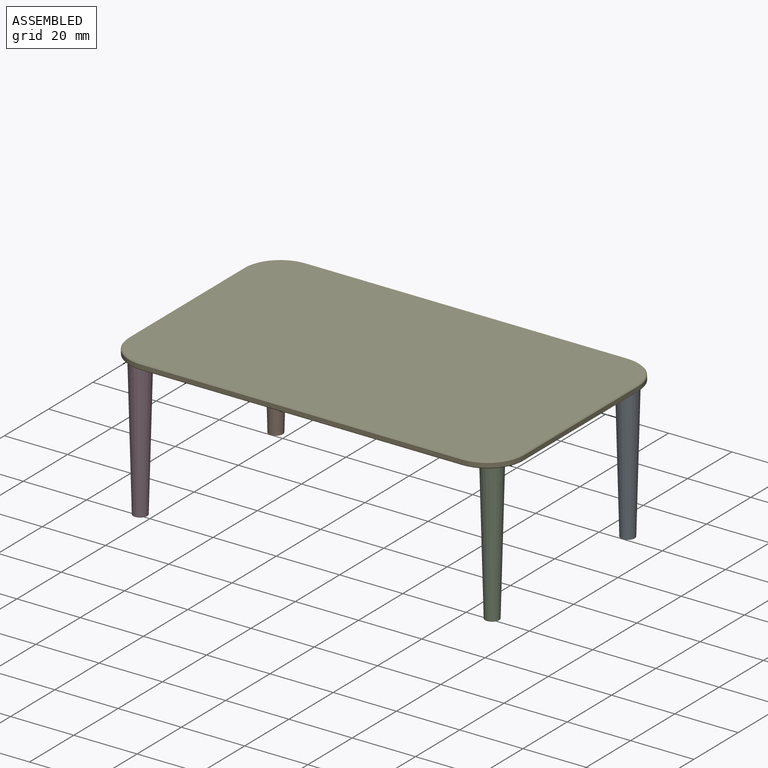
[diagram: assembled view]
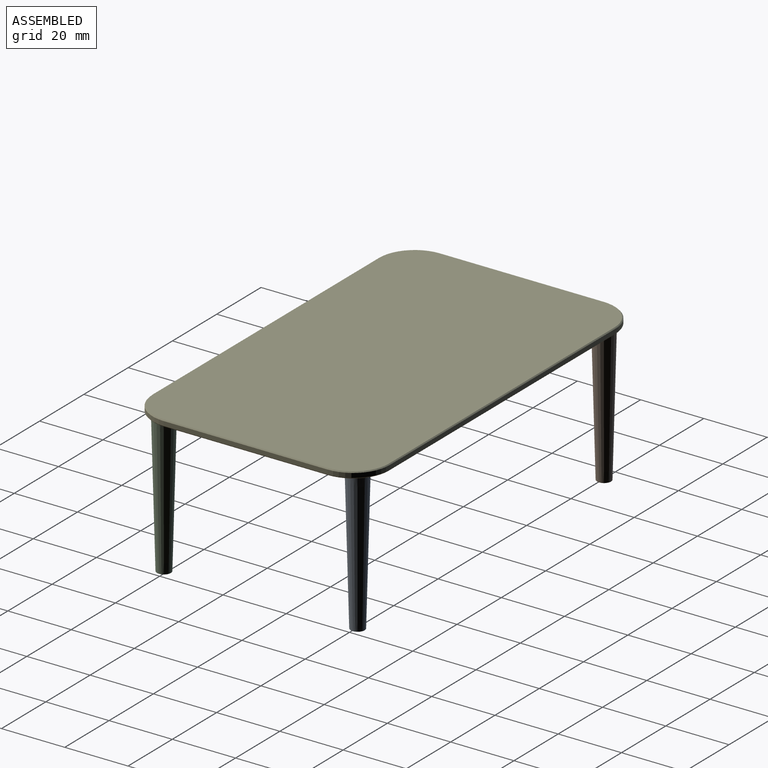
[diagram: assembled view, second angle]
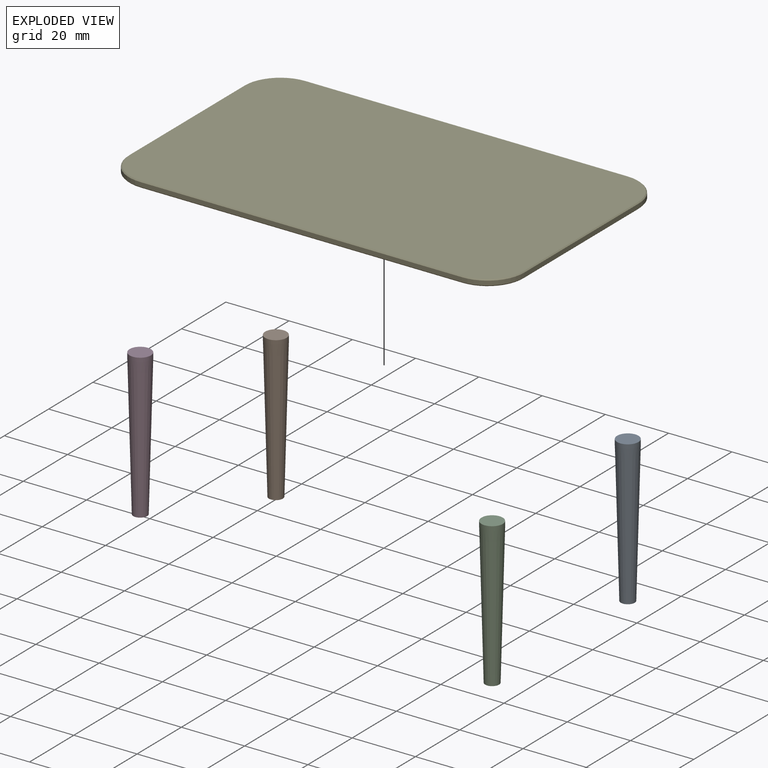
[diagram: exploded view]
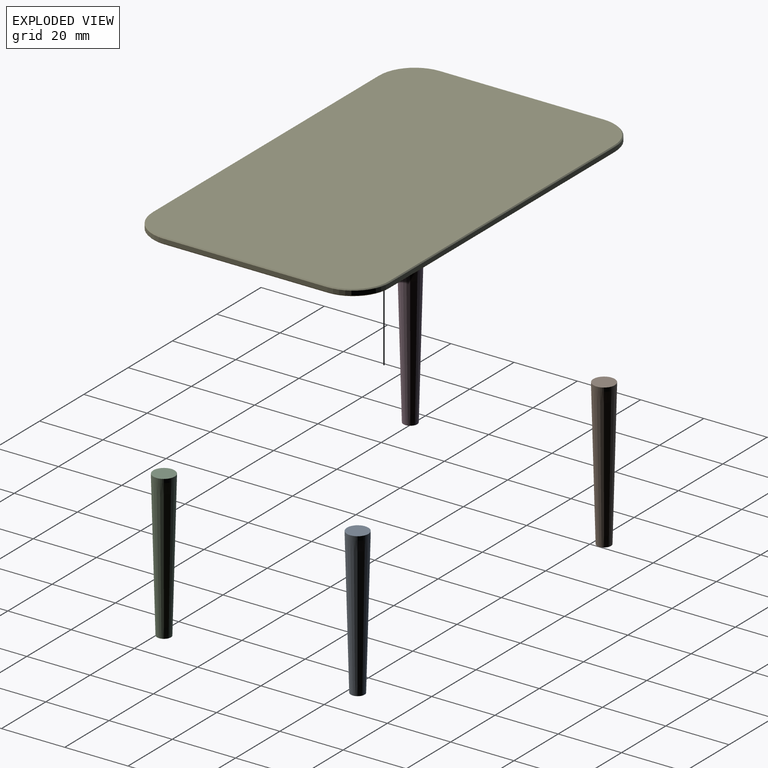
[diagram: exploded view, second angle]
ASSEMBLY  parts=5 mates=4
PART A: 4 faces, bbox 6.8x6.8x46.3 mm
  f0: cone r=3.38mm half-angle=1.5deg, axis (0,0,1), area 787.9mm2, adj f1,f2
  f1: plane 4.39x4.39mm, normal (0,0,-1), area 15.2mm2, adj f0
  f2: cylinder r=3.38mm len=6.75mm, axis (0,0,-1), area 26.5mm2, adj f0,f3
  f3: plane 6.75x6.75mm, normal (0,0,1), area 35.8mm2, adj f2
PART B: same geometry as A
PART C: same geometry as A
PART D: same geometry as A
PART E: 34 faces, bbox 125x75x2 mm
  f0: plane 124.4x74.4mm, normal (0,0,-1), area 9002.9mm2, adj f6,f8,f10,f12,f26,f27,f28,f29
  f1: plane 101.82x1.4mm, normal (0,1,0), area 142.6mm2, adj f14,f17,f24,f32
  f2: plane 51.82x1.4mm, normal (-1,0,0), area 72.6mm2, adj f14,f15,f20,f31
  f3: plane 101.82x1.4mm, normal (0,-1,0), area 142.6mm2, adj f15,f16,f19,f27
  f4: plane 51.82x1.4mm, normal (1,0,0), area 72.6mm2, adj f16,f17,f23,f28
  f5: plane 124.4x74.4mm, normal (0,0,1), area 9146mm2, adj f18,f19,f20,f21,f22,f23,f24,f25
  f6: cylinder r=3.37mm len=6.75mm, axis (0,0,-1), area 26.5mm2, adj f0,f7
  f7: plane 6.75x6.75mm, normal (0,0,-1), area 35.8mm2, adj f6
  f8: cylinder r=3.37mm len=6.75mm, axis (0,0,-1), area 26.5mm2, adj f0,f9
  f9: plane 6.75x6.75mm, normal (0,0,-1), area 35.8mm2, adj f8
  f10: cylinder r=3.37mm len=6.75mm, axis (0,0,-1), area 26.5mm2, adj f0,f11
  f11: plane 6.75x6.75mm, normal (0,0,-1), area 35.8mm2, adj f10
  f12: cylinder r=3.37mm len=6.75mm, axis (0,0,-1), area 26.5mm2, adj f0,f13
  f13: plane 6.75x6.75mm, normal (0,0,-1), area 35.8mm2, adj f12
  f14: cylinder r=11.59mm len=11.59mm, axis (0,0,1), area 25.5mm2, adj f1,f2,f22,f33
  f15: cylinder r=11.59mm len=11.59mm, axis (0,0,-1), area 25.5mm2, adj f2,f3,f18,f29
  f16: cylinder r=11.59mm len=11.59mm, axis (0,0,1), area 25.5mm2, adj f3,f4,f21,f26
  f17: cylinder r=11.59mm len=11.59mm, axis (0,0,-1), area 25.5mm2, adj f1,f4,f25,f30
  f18: cone r=11.29mm half-angle=45deg, axis (0,0,-1), area 7.6mm2, adj f5,f15,f19,f20
  f19: plane 101.82x0.3mm, normal (0,-0.71,0.71), area 43.2mm2, adj f3,f5,f18,f21
  f20: plane 51.82x0.3mm, normal (-0.71,0,0.71), area 22mm2, adj f2,f5,f18,f22
  f21: cone r=11.29mm half-angle=45deg, axis (0,0,-1), area 7.6mm2, adj f5,f16,f19,f23
  f22: cone r=11.29mm half-angle=45deg, axis (0,0,-1), area 7.6mm2, adj f5,f14,f20,f24
  f23: plane 51.82x0.3mm, normal (0.71,0,0.71), area 22mm2, adj f4,f5,f21,f25
  f24: plane 101.82x0.3mm, normal (0,0.71,0.71), area 43.2mm2, adj f1,f5,f22,f25
  f25: cone r=11.29mm half-angle=45deg, axis (0,0,-1), area 7.6mm2, adj f5,f17,f23,f24
  f26: cone r=11.29mm half-angle=45deg, axis (0,0,1), area 7.6mm2, adj f0,f16,f27,f28
  f27: plane 101.82x0.3mm, normal (0,-0.71,-0.71), area 43.2mm2, adj f0,f3,f26,f29
  f28: plane 51.82x0.3mm, normal (0.71,0,-0.71), area 22mm2, adj f0,f4,f26,f30
  f29: cone r=11.29mm half-angle=45deg, axis (0,0,1), area 7.6mm2, adj f0,f15,f27,f31
  f30: cone r=11.29mm half-angle=45deg, axis (0,0,1), area 7.6mm2, adj f0,f17,f28,f32
  f31: plane 51.82x0.3mm, normal (-0.71,0,-0.71), area 22mm2, adj f0,f2,f29,f33
  f32: plane 101.82x0.3mm, normal (0,0.71,-0.71), area 43.2mm2, adj f0,f1,f30,f33
  f33: cone r=11.29mm half-angle=45deg, axis (0,0,1), area 7.6mm2, adj f0,f14,f31,f32
PLACE A t=(53.08,25.77,19.84)mm
PLACE B t=(-58.17,25.77,19.84)mm
PLACE C t=(53.08,-35.49,19.84)mm
PLACE D t=(-58.17,-35.49,19.84)mm
PLACE E t=(-2.55,-4.86,19.84)mm
MATE fastened A.f0 <-> E.f12  axis (0,0,1) through (53.08,25.77,21.09)mm
MATE fastened C.f0 <-> E.f10  axis (0,0,1) through (53.08,-35.49,21.09)mm
MATE fastened D.f0 <-> E.f8  axis (0,0,1) through (-58.17,-35.49,21.09)mm
MATE fastened B.f0 <-> E.f6  axis (0,0,1) through (-58.17,25.77,21.09)mm
